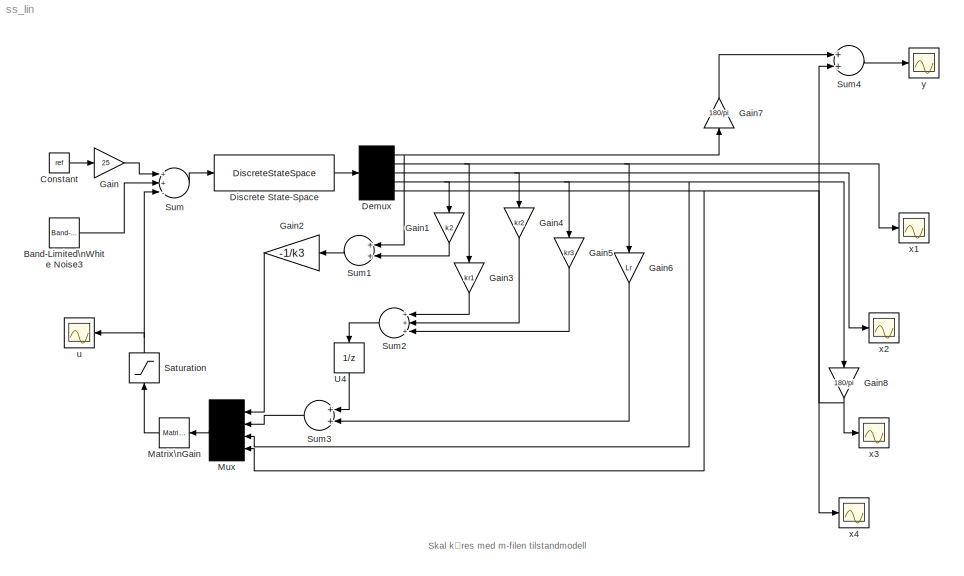
MODEL ss_lin
KIND model
CONFIG AbsTol = 1e-6
CONFIG FixedStep = auto
CONFIG MaxStep = auto
CONFIG RelTol = 1e-3
CONFIG Solver = FixedStepDiscrete
CONFIG StartTime = 0.0
CONFIG StopTime = 10.0
BLOCK [Reference] Band-Limited\nWhite Noise3  REF=simulink/Sources/Band-Limited\nWhite Noise
  Cov = [0.2]
  Ports = [0, 1, 0, 0, 0]
  SourceBlock = simulink/Sources/Band-Limited\nWhite Noise
  SourceType = Continuous White Noise.
  Ts = 0.025
  seed = [23341]
BLOCK [Constant] Constant
  Value = ref
BLOCK [Demux] Demux
  Outputs = 5
  Ports = [1, 5, 0, 0, 0]
BLOCK [DiscreteStateSpace] Discrete State-Space
  A = Phi
  B = Gamma
  C = C
  D = D
  SampleTime = 0.025
  X0 = 0
BLOCK [Gain] Gain
  Gain = 25
BLOCK [Gain] Gain1
  Gain = k2
BLOCK [Gain] Gain2
  Gain = -1/k3
BLOCK [Gain] Gain3
  Gain = kr1
BLOCK [Gain] Gain4
  Gain = kr2
BLOCK [Gain] Gain5
  Gain = kr3
BLOCK [Gain] Gain6
  Gain = Lr
BLOCK [Gain] Gain7
  Gain = 180/pi
BLOCK [Gain] Gain8
  Gain = 180/pi
BLOCK [Reference] Matrix\nGain  REF=simulink/Linear/Matrix\nGain
  K = K
  Ports = [1, 1, 0, 0, 0]
  SourceBlock = simulink/Linear/Matrix\nGain
  SourceType = Matrix Gain
BLOCK [Mux] Mux
  Inputs = 4
  Ports = [4, 1, 0, 0, 0]
BLOCK [Saturate] Saturation
  LowerLimit = -5
  UpperLimit = 5
BLOCK [Sum] Sum
  Inputs = ++-
  Ports = [3, 1, 0, 0, 0]
BLOCK [Sum] Sum1
  Inputs = ++
  Ports = [2, 1, 0, 0, 0]
BLOCK [Sum] Sum2
  Inputs = +++
  Ports = [3, 1, 0, 0, 0]
BLOCK [Sum] Sum3
  Inputs = ++
  Ports = [2, 1, 0, 0, 0]
BLOCK [Sum] Sum4
  Inputs = ++
  Ports = [2, 1, 0, 0, 0]
BLOCK [UnitDelay] U4
  SampleTime = 0.025
  X0 = 0
BLOCK [Scope] u
  Decimation = 1
  Floating = off
  Grid = on
  LimitMaxRows = off
  MaxRows = 5000
  Ports = [1, 0, 0, 0, 0]
  SampleInput = off
  SampleTime = 0
  SaveName = ScopeData
  SaveToWorkspace = off
  TickLabels = on
  TimeRange = auto
  YMax = 5
  YMin = -5
  ZoomMode = on
BLOCK [Scope] x1
  Decimation = 1
  Floating = off
  Grid = on
  LimitMaxRows = off
  MaxRows = 5000
  Ports = [1, 0, 0, 0, 0]
  SampleInput = off
  SampleTime = 0
  SaveName = ScopeData
  SaveToWorkspace = off
  TickLabels = on
  TimeRange = auto
  YMax = 5
  YMin = -5
  ZoomMode = on
BLOCK [Scope] x2
  Decimation = 1
  Floating = off
  Grid = on
  LimitMaxRows = off
  MaxRows = 5000
  Ports = [1, 0, 0, 0, 0]
  SampleInput = off
  SampleTime = 0
  SaveName = ScopeData
  SaveToWorkspace = off
  TickLabels = on
  TimeRange = auto
  YMax = 5
  YMin = -5
  ZoomMode = on
BLOCK [Scope] x3
  Decimation = 1
  Floating = off
  Grid = on
  LimitMaxRows = off
  MaxRows = 5000
  Ports = [1, 0, 0, 0, 0]
  SampleInput = off
  SampleTime = 0
  SaveName = ScopeData
  SaveToWorkspace = off
  TickLabels = on
  TimeRange = auto
  YMax = 5
  YMin = -5
  ZoomMode = on
BLOCK [Scope] x4
  Decimation = 1
  Floating = off
  Grid = on
  LimitMaxRows = off
  MaxRows = 5000
  Ports = [1, 0, 0, 0, 0]
  SampleInput = off
  SampleTime = 0
  SaveName = ScopeData
  SaveToWorkspace = off
  TickLabels = on
  TimeRange = auto
  YMax = 5
  YMin = -5
  ZoomMode = on
BLOCK [Scope] y
  Decimation = 1
  Floating = off
  Grid = on
  LimitMaxRows = off
  MaxRows = 5000
  Ports = [1, 0, 0, 0, 0]
  SampleInput = off
  SampleTime = 0
  SaveName = ScopeData
  SaveToWorkspace = off
  TickLabels = on
  TimeRange = auto
  YMax = 5
  YMin = -5
  ZoomMode = yonly
LINE Band-Limited\nWhite Noise3:1 -> Sum:2
LINE Constant:1 -> Gain:1
NET Demux:1 -> Gain7:1, Sum1:1
NET Demux:2 -> Gain3:1, Gain6:1, x1:1
NET Demux:3 -> Gain4:1, x2:1
NET Demux:4 -> Gain1:1, Gain5:1, Gain8:1, Mux:3
NET Demux:5 -> Mux:4, x4:1
LINE Discrete State-Space:1 -> Demux:1
LINE Gain1:1 -> Sum1:2
LINE Gain2:1 -> Mux:1
LINE Gain3:1 -> Sum2:1
LINE Gain4:1 -> Sum2:2
LINE Gain5:1 -> Sum2:3
LINE Gain6:1 -> Sum3:2
LINE Gain7:1 -> Sum4:1
NET Gain8:1 -> Sum4:2, x3:1
LINE Gain:1 -> Sum:1
LINE Matrix\nGain:1 -> Saturation:1
LINE Mux:1 -> Matrix\nGain:1
NET Saturation:1 -> Sum:3, u:1
LINE Sum1:1 -> Gain2:1
LINE Sum2:1 -> U4:1
LINE Sum3:1 -> Mux:2
LINE Sum4:1 -> y:1
LINE Sum:1 -> Discrete State-Space:1
LINE U4:1 -> Sum3:1
note: NET lines group one-source signal fan-out (src -> all destinations, sorted); 1:1 wires keep LINE
